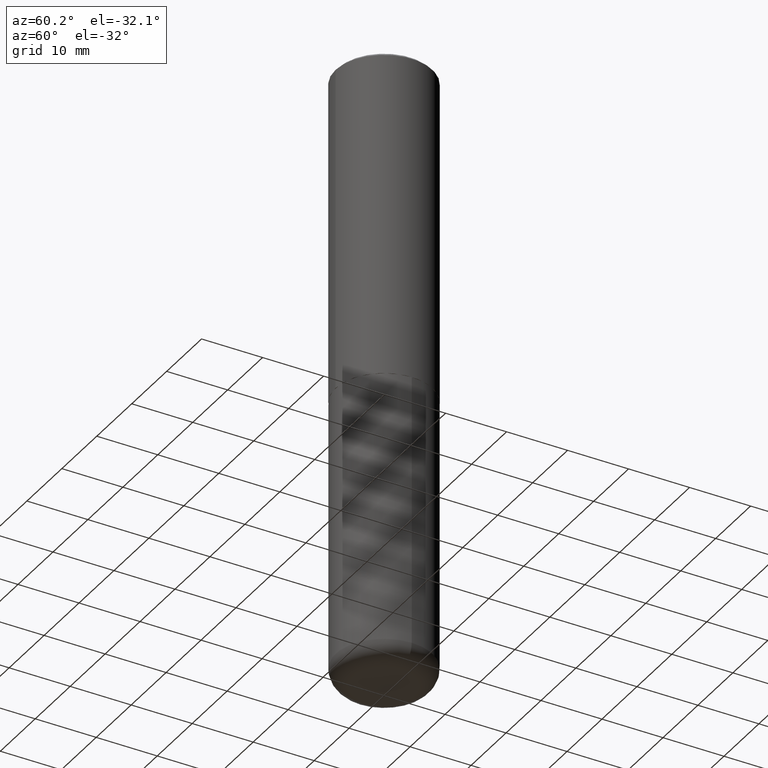
[diagram: clean part render]
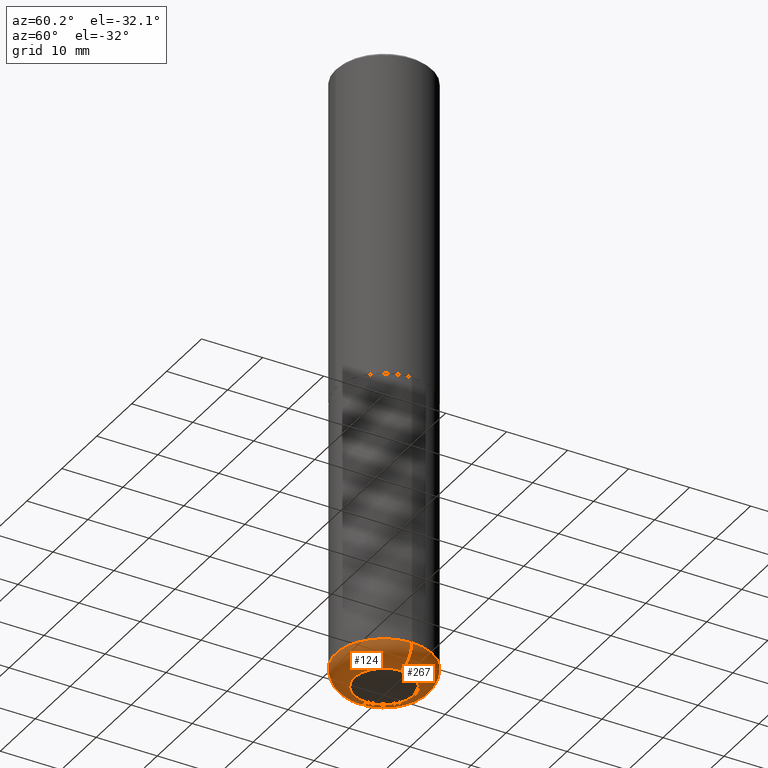
[diagram: same view with one multi-face feature highlighted, each face labeled with its STEP entity id]
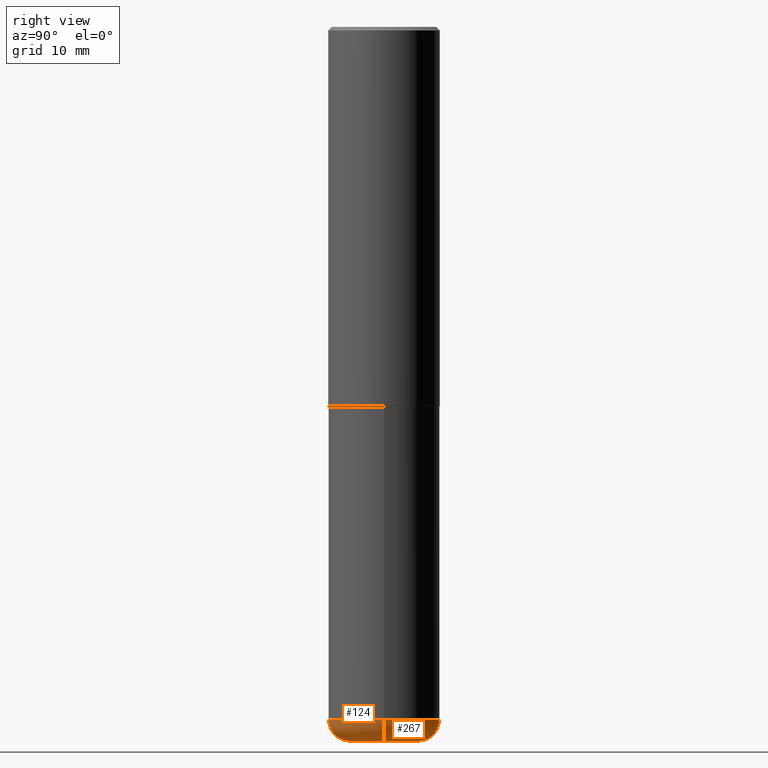
[diagram: same view with one multi-face feature highlighted, each face labeled with its STEP entity id]
A machine part, auxiliary view. The highlighted faces form ONE feature: a constant-radius fillet chain: 2 tangent blend faces with common blend radius 3.048 mm. The faces share edges in the B-rep.
A second angle (right view) of the same feature is appended — it is thin or edge-on in the first view.
Their STEP definitions:
[1] entity #124 (Torus):
#4 = CARTESIAN_POINT ( 'NONE',  ( -0.3125000000000000555, -1.132650154546109262E-14, -3.880000000000000338 ) ) ;
#17 = EDGE_CURVE ( 'NONE', #85, #258, #323, .T. ) ;
#26 = EDGE_CURVE ( 'NONE', #258, #56, #97, .T. ) ;
#56 = VERTEX_POINT ( 'NONE', #413 ) ;
#57 = AXIS2_PLACEMENT_3D ( 'NONE', #300, #166, #236 ) ;
#70 = DIRECTION ( 'NONE',  ( 1.000000000000000000, -6.982962677686276177E-15, 0.000000000000000000 ) ) ;
#73 = CARTESIAN_POINT ( 'NONE',  ( 0.1925000000000000044, -1.531014567082719057E-14, -4.000000000000000888 ) ) ;
#85 = VERTEX_POINT ( 'NONE', #296 ) ;
#91 = CIRCLE ( 'NONE', #167, 0.1200000000000001482 ) ;
#96 = DIRECTION ( 'NONE',  ( 7.105427357601001859E-15, 1.000000000000000000, -3.491481338843145583E-15 ) ) ;
#97 = CIRCLE ( 'NONE', #109, 0.3125000000000000000 ) ;
#98 = CIRCLE ( 'NONE', #253, 0.1925000000000000044 ) ;
#109 = AXIS2_PLACEMENT_3D ( 'NONE', #160, #129, #232 ) ;
#112 = ORIENTED_EDGE ( 'NONE', *, *, #233, .T. ) ;
#124 = ADVANCED_FACE ( 'NONE', ( #335 ), #227, .T. ) ;
#129 = DIRECTION ( 'NONE',  ( -2.445468806185136597E-29, 3.491481338843145583E-15, 1.000000000000000000 ) ) ;
#155 = ORIENTED_EDGE ( 'NONE', *, *, #17, .F. ) ;
#160 = CARTESIAN_POINT ( 'NONE',  ( 9.488418967998330085E-29, -1.354694759471140570E-14, -3.880000000000000338 ) ) ;
#163 = DIRECTION ( 'NONE',  ( -1.000000000000000000, 7.105427357600998703E-15, 0.000000000000000000 ) ) ;
#166 = DIRECTION ( 'NONE',  ( -2.445468806185136597E-29, 3.491481338843145583E-15, 1.000000000000000000 ) ) ;
#167 = AXIS2_PLACEMENT_3D ( 'NONE', #240, #211, #70 ) ;
#172 = AXIS2_PLACEMENT_3D ( 'NONE', #192, #96, #163 ) ;
#192 = CARTESIAN_POINT ( 'NONE',  ( -0.1925000000000000044, -1.217915282837321360E-14, -3.880000000000000338 ) ) ;
#211 = DIRECTION ( 'NONE',  ( -6.982962677686266711E-15, -1.000000000000000000, 3.491481338843145583E-15 ) ) ;
#227 = TOROIDAL_SURFACE ( 'NONE', #57, 0.1925000000000000044, 0.1200000000000001898 ) ;
#232 = DIRECTION ( 'NONE',  ( 1.000000000000000000, -6.982962677686269077E-15, 0.000000000000000000 ) ) ;
#233 = EDGE_CURVE ( 'NONE', #324, #56, #91, .T. ) ;
#236 = DIRECTION ( 'NONE',  ( 1.000000000000000000, -6.982962677686265922E-15, 4.883557194083112340E-29 ) ) ;
#240 = CARTESIAN_POINT ( 'NONE',  ( 0.1925000000000000044, -1.489116791016601393E-14, -3.880000000000000338 ) ) ;
#253 = AXIS2_PLACEMENT_3D ( 'NONE', #315, #291, #287 ) ;
#258 = VERTEX_POINT ( 'NONE', #4 ) ;
#287 = DIRECTION ( 'NONE',  ( 1.000000000000000000, -6.982962677686269077E-15, 0.000000000000000000 ) ) ;
#291 = DIRECTION ( 'NONE',  ( -2.445468806185136597E-29, 3.491481338843145583E-15, 1.000000000000000000 ) ) ;
#296 = CARTESIAN_POINT ( 'NONE',  ( -0.1925000000000000044, -1.196231606724774300E-14, -4.000000000000000888 ) ) ;
#300 = CARTESIAN_POINT ( 'NONE',  ( 9.488418967998330085E-29, -1.354694759471140570E-14, -3.880000000000000338 ) ) ;
#315 = CARTESIAN_POINT ( 'NONE',  ( 9.781875224740547508E-29, -1.396592535537258391E-14, -4.000000000000000888 ) ) ;
#323 = CIRCLE ( 'NONE', #172, 0.1200000000000001482 ) ;
#324 = VERTEX_POINT ( 'NONE', #73 ) ;
#335 = FACE_OUTER_BOUND ( 'NONE', #382, .T. ) ;
#372 = ORIENTED_EDGE ( 'NONE', *, *, #26, .F. ) ;
#380 = ORIENTED_EDGE ( 'NONE', *, *, #383, .T. ) ;
#382 = EDGE_LOOP ( 'NONE', ( #155, #380, #112, #372 ) ) ;
#383 = EDGE_CURVE ( 'NONE', #85, #324, #98, .T. ) ;
#413 = CARTESIAN_POINT ( 'NONE',  ( 0.3125000000000000555, -1.572912343148836404E-14, -3.880000000000000338 ) ) ;
[2] entity #267 (Torus):
#4 = CARTESIAN_POINT ( 'NONE',  ( -0.3125000000000000555, -1.132650154546109262E-14, -3.880000000000000338 ) ) ;
#8 = AXIS2_PLACEMENT_3D ( 'NONE', #322, #20, #12 ) ;
#9 = DIRECTION ( 'NONE',  ( 1.000000000000000000, -6.982962677686265922E-15, 4.883557194083112340E-29 ) ) ;
#10 = ORIENTED_EDGE ( 'NONE', *, *, #17, .T. ) ;
#12 = DIRECTION ( 'NONE',  ( 1.000000000000000000, -6.982962677686269077E-15, 0.000000000000000000 ) ) ;
#17 = EDGE_CURVE ( 'NONE', #85, #258, #323, .T. ) ;
#20 = DIRECTION ( 'NONE',  ( -2.445468806185136597E-29, 3.491481338843145583E-15, 1.000000000000000000 ) ) ;
#56 = VERTEX_POINT ( 'NONE', #413 ) ;
#70 = DIRECTION ( 'NONE',  ( 1.000000000000000000, -6.982962677686276177E-15, 0.000000000000000000 ) ) ;
#72 = TOROIDAL_SURFACE ( 'NONE', #316, 0.1925000000000000044, 0.1200000000000001898 ) ;
#73 = CARTESIAN_POINT ( 'NONE',  ( 0.1925000000000000044, -1.531014567082719057E-14, -4.000000000000000888 ) ) ;
#85 = VERTEX_POINT ( 'NONE', #296 ) ;
#91 = CIRCLE ( 'NONE', #167, 0.1200000000000001482 ) ;
#96 = DIRECTION ( 'NONE',  ( 7.105427357601001859E-15, 1.000000000000000000, -3.491481338843145583E-15 ) ) ;
#107 = DIRECTION ( 'NONE',  ( 1.000000000000000000, -6.982962677686269077E-15, 0.000000000000000000 ) ) ;
#147 = ORIENTED_EDGE ( 'NONE', *, *, #370, .F. ) ;
#158 = EDGE_CURVE ( 'NONE', #324, #85, #261, .T. ) ;
#163 = DIRECTION ( 'NONE',  ( -1.000000000000000000, 7.105427357600998703E-15, 0.000000000000000000 ) ) ;
#167 = AXIS2_PLACEMENT_3D ( 'NONE', #240, #211, #70 ) ;
#172 = AXIS2_PLACEMENT_3D ( 'NONE', #192, #96, #163 ) ;
#192 = CARTESIAN_POINT ( 'NONE',  ( -0.1925000000000000044, -1.217915282837321360E-14, -3.880000000000000338 ) ) ;
#202 = DIRECTION ( 'NONE',  ( -2.445468806185136597E-29, 3.491481338843145583E-15, 1.000000000000000000 ) ) ;
#204 = CIRCLE ( 'NONE', #8, 0.3125000000000000000 ) ;
#207 = DIRECTION ( 'NONE',  ( -2.445468806185136597E-29, 3.491481338843145583E-15, 1.000000000000000000 ) ) ;
#211 = DIRECTION ( 'NONE',  ( -6.982962677686266711E-15, -1.000000000000000000, 3.491481338843145583E-15 ) ) ;
#217 = AXIS2_PLACEMENT_3D ( 'NONE', #306, #207, #107 ) ;
#221 = ORIENTED_EDGE ( 'NONE', *, *, #233, .F. ) ;
#233 = EDGE_CURVE ( 'NONE', #324, #56, #91, .T. ) ;
#240 = CARTESIAN_POINT ( 'NONE',  ( 0.1925000000000000044, -1.489116791016601393E-14, -3.880000000000000338 ) ) ;
#250 = ORIENTED_EDGE ( 'NONE', *, *, #158, .T. ) ;
#258 = VERTEX_POINT ( 'NONE', #4 ) ;
#261 = CIRCLE ( 'NONE', #217, 0.1925000000000000044 ) ;
#267 = ADVANCED_FACE ( 'NONE', ( #341 ), #72, .T. ) ;
#296 = CARTESIAN_POINT ( 'NONE',  ( -0.1925000000000000044, -1.196231606724774300E-14, -4.000000000000000888 ) ) ;
#306 = CARTESIAN_POINT ( 'NONE',  ( 9.781875224740547508E-29, -1.396592535537258391E-14, -4.000000000000000888 ) ) ;
#313 = EDGE_LOOP ( 'NONE', ( #250, #10, #147, #221 ) ) ;
#316 = AXIS2_PLACEMENT_3D ( 'NONE', #394, #202, #9 ) ;
#322 = CARTESIAN_POINT ( 'NONE',  ( 9.488418967998330085E-29, -1.354694759471140570E-14, -3.880000000000000338 ) ) ;
#323 = CIRCLE ( 'NONE', #172, 0.1200000000000001482 ) ;
#324 = VERTEX_POINT ( 'NONE', #73 ) ;
#341 = FACE_OUTER_BOUND ( 'NONE', #313, .T. ) ;
#370 = EDGE_CURVE ( 'NONE', #56, #258, #204, .T. ) ;
#394 = CARTESIAN_POINT ( 'NONE',  ( 9.488418967998330085E-29, -1.354694759471140570E-14, -3.880000000000000338 ) ) ;
#413 = CARTESIAN_POINT ( 'NONE',  ( 0.3125000000000000555, -1.572912343148836404E-14, -3.880000000000000338 ) ) ;